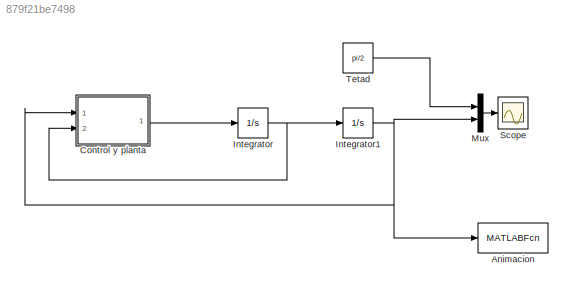
MODEL slx_879f21be7498
KIND model
CONFIG AbsTol = auto
CONFIG EnableMultiTasking = off
CONFIG FixedStep = auto
CONFIG MaxStep = auto
CONFIG MinStep = auto
CONFIG RelTol = 1e-3
CONFIG SampleTimeConstraint = Unconstrained
CONFIG SolverName = VariableStepAuto
CONFIG StartTime = 0.0
CONFIG StopTime = 10.0
BLOCK [MATLABFcn] Animacion
  MATLABFcn = animacion
  OutputDimensions = 0
  Ports = [1]
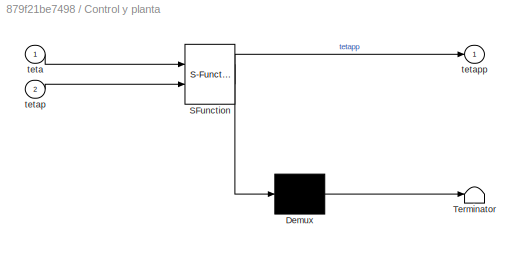
BLOCK [SubSystem] Control y planta
  ErrorFcn = Stateflow.Translate.translate
  PermitHierarchicalResolution = ExplicitOnly
  Ports = [2, 1]
  RequestExecContextInheritance = off
  SFBlockType = MATLAB Function
  TreatAsAtomicUnit = on
BLOCK [Demux] Control y planta/ Demux 
  Outputs = 1
  Ports = [1, 1]
BLOCK [S-Function] Control y planta/ SFunction 
  EnableBusSupport = on
  FunctionName = sf_sfun
  PortCounts = [2 2]
  Ports = [2, 2]
  SFcnIsStateOwnerBlock = off
  SFunctionDeploymentMode = off
  Tag = Stateflow S-Function 2
BLOCK [Terminator] Control y planta/ Terminator 
BLOCK [Inport] Control y planta/teta
BLOCK [Inport] Control y planta/tetap
  Port = 2
BLOCK [Outport] Control y planta/tetapp
BLOCK [Integrator] Integrator
  Ports = [1, 1]
BLOCK [Integrator] Integrator1
  Ports = [1, 1]
BLOCK [Mux] Mux
  DisplayOption = bar
  Inputs = 2
  Ports = [2, 1]
BLOCK [Scope] Scope
  Floating = off
  NumInputPorts = 1
  Ports = [1]
  ScopeSpecificationString = Simulink.scopes.TimeScopeBlockCfg('CurrentConfiguration', extmgr.ConfigurationSet(extmgr.Configuration('Core','General UI',true),extmgr.Configuration('Core','Source UI',true),extmgr.Configuration('Sources','WiredSimulink',true),extmgr.Configuration('Visuals','Time Domain',true,'SerializedDisplays',{struct('MinYLimReal','-0.19635','MaxYLimReal','1.76715','YLabelReal','','MinYLimMag','0.00000','MaxY...<+1368ch>
BLOCK [Constant] Tetad
  Value = pi/2
LINE Control y planta:1 -> Integrator:1
NET Integrator1:1 -> Animacion:1, Control y planta:1, Mux:2
NET Integrator:1 -> Control y planta:2, Integrator1:1
LINE Mux:1 -> Scope:1
LINE Tetad:1 -> Mux:1
note: NET lines group one-source signal fan-out (src -> all destinations, sorted); 1:1 wires keep LINE
CHART Control y planta states=1 transitions=1
  STATE_LABEL 'eML_blk_kernel()'
  STATE_LABEL 'SCRIPT:\nfunction tetapp = fcn(teta, tetap)\n% Parametros\nm = 1;\nlc = 0.5;\nI = 1;\ng = 9.81;\nB = 0.003;\nkp = 450;\nkd = 50;\ntetad = pi / 2;\n\n% Control\ne =  tetad - teta;\ntau  = kp * e - kd * tetap;\n\n% Planta\ntetapp = 1 / (m *lc^2 + I) * (tau - m*g*lc*sin(teta) - B*tetap);\n'
CHART  states=0 transitions=0
